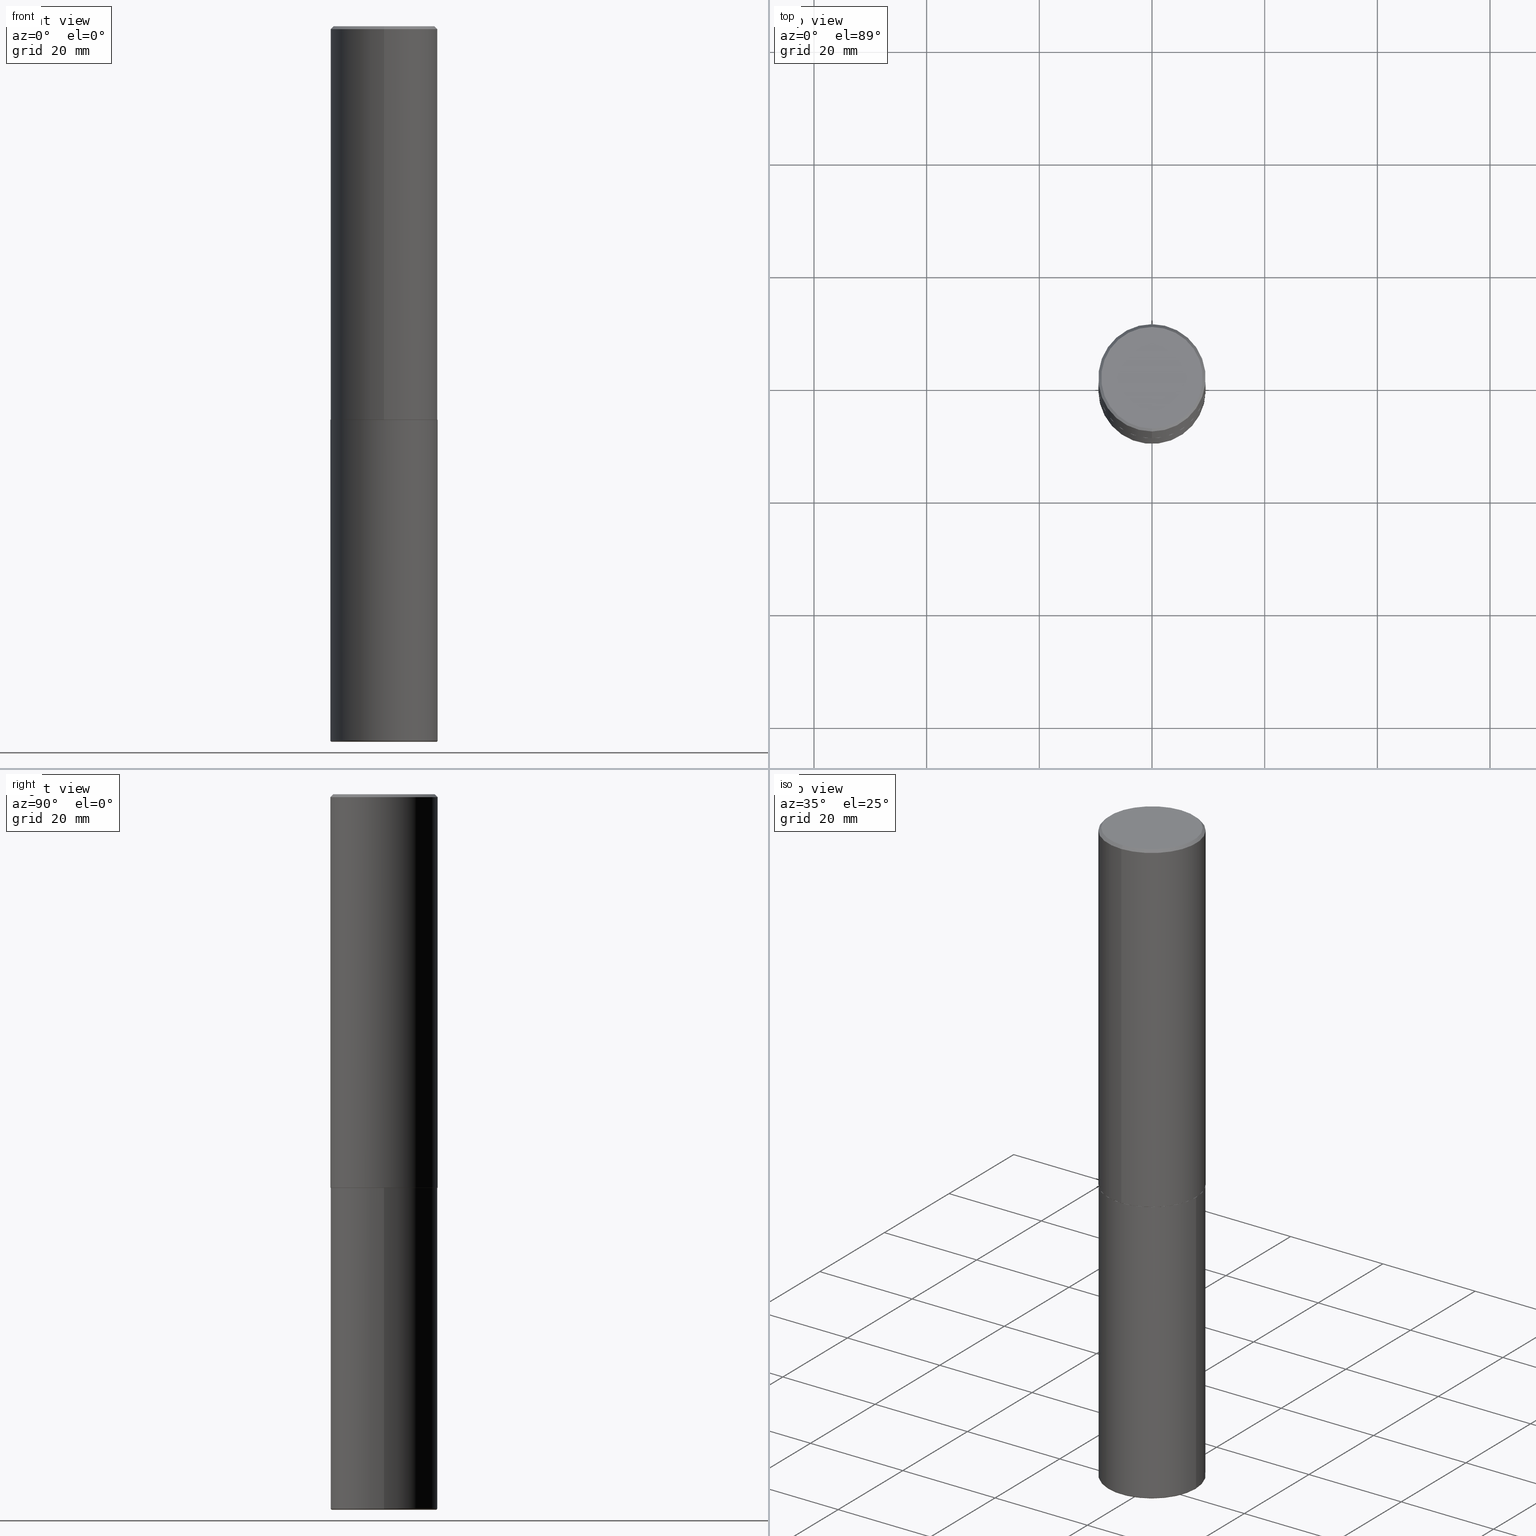
[diagram: canonical four-view strip — front | top / right | iso, engineering-drawing reading convention]
A machine part, canonical four-view strip (front | top / right | iso — engineering-drawing reading convention). The complete STEP part file that produces these views, byte-faithful:
ISO-10303-21;
HEADER;
FILE_DESCRIPTION (( 'STEP AP203' ),
    '1' );
FILE_NAME ('37638.STEP',
    '2024-03-02T06:32:26',
    ( '' ),
    ( '' ),
    'SwSTEP 2.0',
    'SolidWorks 2023',
    '' );
FILE_SCHEMA (( 'CONFIG_CONTROL_DESIGN' ));
ENDSEC;

DATA;
#1 = PLANE ( 'NONE',  #371 ) ;
#2 = DIRECTION ( 'NONE',  ( -2.445468806185136597E-29, 3.491481338843145583E-15, 1.000000000000000000 ) ) ;
#3 = ORIENTED_EDGE ( 'NONE', *, *, #283, .T. ) ;
#4 = EDGE_CURVE ( 'NONE', #247, #98, #169, .T. ) ;
#5 = AXIS2_PLACEMENT_3D ( 'NONE', #351, #161, #191 ) ;
#6 = AXIS2_PLACEMENT_3D ( 'NONE', #58, #65, #409 ) ;
#7 = FACE_OUTER_BOUND ( 'NONE', #287, .T. ) ;
#8 = APPROVAL ( #349, 'UNSPECIFIED' ) ;
#9 = DIRECTION ( 'NONE',  ( -6.982962677686266711E-15, -1.000000000000000000, 2.921762560068730595E-15 ) ) ;
#10 = VERTEX_POINT ( 'NONE', #168 ) ;
#11 = DIRECTION ( 'NONE',  ( -2.446040391741596606E-29, 3.490662795793665557E-15, 1.000000000000000000 ) ) ;
#12 = AXIS2_PLACEMENT_3D ( 'NONE', #40, #201, #209 ) ;
#13 = VECTOR ( 'NONE', #262, 39.37007874015748143 ) ;
#14 = EDGE_CURVE ( 'NONE', #247, #341, #202, .T. ) ;
#15 = APPLICATION_PROTOCOL_DEFINITION ( 'international standard', 'config_control_design', 1994, #340 ) ;
#16 = CARTESIAN_POINT ( 'NONE',  ( 2.660982545421643429E-15, 0.3739999999999903957, -2.750000000000000888 ) ) ;
#17 = CARTESIAN_POINT ( 'NONE',  ( 1.220288934286383144E-28, -1.742249188082729666E-14, -4.990000000000000213 ) ) ;
#18 = CARTESIAN_POINT ( 'NONE',  ( 0.3650000000000000466, -2.000618807157122291E-14, -5.000000000000000888 ) ) ;
#19 = PERSON_AND_ORGANIZATION_ROLE ( 'classification_officer' ) ;
#20 = CARTESIAN_POINT ( 'NONE',  ( 1.220288934286383144E-28, -1.742249188082729666E-14, -4.990000000000000213 ) ) ;
#21 = EDGE_CURVE ( 'NONE', #400, #66, #189, .T. ) ;
#22 = CONICAL_SURFACE ( 'NONE', #129, 0.3739999999999999991, 0.7853981633977213939 ) ;
#23 = CC_DESIGN_PERSON_AND_ORGANIZATION_ASSIGNMENT ( #51, #238, ( #49 ) ) ;
#24 = PRODUCT_DEFINITION_SHAPE ( 'NONE', 'NONE',  #49 ) ;
#25 = EDGE_LOOP ( 'NONE', ( #71, #3, #204, #89 ) ) ;
#26 = DATE_AND_TIME ( #270, #190 ) ;
#27 = CARTESIAN_POINT ( 'NONE',  ( 6.725039217009124520E-29, -9.601573681818649859E-15, -2.750000000000000000 ) ) ;
#28 = ADVANCED_FACE ( 'NONE', ( #291 ), #22, .T. ) ;
#29 = AXIS2_PLACEMENT_3D ( 'NONE', #127, #377, #414 ) ;
#30 = ORIENTED_EDGE ( 'NONE', *, *, #96, .F. ) ;
#31 = DIRECTION ( 'NONE',  ( 1.000000000000000000, -6.982962677686261189E-15, 0.000000000000000000 ) ) ;
#32 = PERSON_AND_ORGANIZATION_ROLE ( 'design_owner' ) ;
#33 = AXIS2_PLACEMENT_3D ( 'NONE', #254, #412, #243 ) ;
#34 = ORIENTED_EDGE ( 'NONE', *, *, #80, .F. ) ;
#35 = CC_DESIGN_PERSON_AND_ORGANIZATION_ASSIGNMENT ( #126, #32, ( #236 ) ) ;
#36 = CARTESIAN_POINT ( 'NONE',  ( 0.000000000000000000, 0.000000000000000000, 0.000000000000000000 ) ) ;
#37 = LINE ( 'NONE', #113, #216 ) ;
#38 = AXIS2_PLACEMENT_3D ( 'NONE', #76, #2, #251 ) ;
#39 = AXIS2_PLACEMENT_3D ( 'NONE', #214, #130, #301 ) ;
#40 = CARTESIAN_POINT ( 'NONE',  ( 1.220288934286383144E-28, -1.742249188082729666E-14, -4.990000000000000213 ) ) ;
#41 = DIRECTION ( 'NONE',  ( 2.446040391741596606E-29, -3.490662795793665557E-15, -1.000000000000000000 ) ) ;
#42 =( CONVERSION_BASED_UNIT ( 'INCH', #330 ) LENGTH_UNIT ( ) NAMED_UNIT ( #147 ) );
#43 = DIRECTION ( 'NONE',  ( -6.982962677686265922E-15, -1.000000000000000000, 3.494488891895536035E-15 ) ) ;
#44 = CARTESIAN_POINT ( 'NONE',  ( -0.3650000000000000466, -1.481094116520914498E-14, -5.000000000000000888 ) ) ;
#45 = ORIENTED_EDGE ( 'NONE', *, *, #403, .F. ) ;
#46 = CIRCLE ( 'NONE', #33, 0.3739999999999999991 ) ;
#47 = TOROIDAL_SURFACE ( 'NONE', #12, 0.3650000000000000466, 0.01000000000000061083 ) ;
#48 = ORIENTED_EDGE ( 'NONE', *, *, #288, .T. ) ;
#49 = PRODUCT_DEFINITION ( 'UNKNOWN', '', #303, #183 ) ;
#50 = FACE_OUTER_BOUND ( 'NONE', #121, .T. ) ;
#51 = PERSON_AND_ORGANIZATION ( #220, #86 ) ;
#52 = ORIENTED_EDGE ( 'NONE', *, *, #171, .T. ) ;
#53 = PERSON_AND_ORGANIZATION ( #220, #86 ) ;
#54 = APPROVAL_ROLE ( '' ) ;
#55 = VERTEX_POINT ( 'NONE', #359 ) ;
#56 = ORIENTED_EDGE ( 'NONE', *, *, #245, .T. ) ;
#57 = CALENDAR_DATE ( 2024, 2, 3 ) ;
#58 = CARTESIAN_POINT ( 'NONE',  ( 1.222734403092568523E-28, -1.745740669421573304E-14, -5.000000000000000888 ) ) ;
#59 = EDGE_LOOP ( 'NONE', ( #375, #218, #272, #97 ) ) ;
#60 = EDGE_CURVE ( 'NONE', #62, #273, #406, .T. ) ;
#61 = DIRECTION ( 'NONE',  ( -2.446040391741596606E-29, 3.490662795793665557E-15, 1.000000000000000000 ) ) ;
#62 = VERTEX_POINT ( 'NONE', #16 ) ;
#63 = CIRCLE ( 'NONE', #326, 0.3750000000000000555 ) ;
#64 = LOCAL_TIME ( 1, 32, 26.00000000000000000, #179 ) ;
#65 = DIRECTION ( 'NONE',  ( -2.445468806185136597E-29, 3.491481338843145583E-15, 1.000000000000000000 ) ) ;
#66 = VERTEX_POINT ( 'NONE', #143 ) ;
#67 = EDGE_CURVE ( 'NONE', #98, #55, #263, .T. ) ;
#68 = EDGE_LOOP ( 'NONE', ( #416, #141 ) ) ;
#69 = ORIENTED_EDGE ( 'NONE', *, *, #74, .T. ) ;
#70 = AXIS2_PLACEMENT_3D ( 'NONE', #241, #398, #368 ) ;
#71 = ORIENTED_EDGE ( 'NONE', *, *, #100, .T. ) ;
#72 = CYLINDRICAL_SURFACE ( 'NONE', #177, 0.3750000000000002220 ) ;
#73 = DIRECTION ( 'NONE',  ( -1.000000000000000000, 6.982962677686265922E-15, -4.876176775795935793E-29 ) ) ;
#74 = EDGE_CURVE ( 'NONE', #400, #394, #315, .T. ) ;
#75 = DIRECTION ( 'NONE',  ( 1.000000000000000000, -6.982962677686271444E-15, 4.883557194083115143E-29 ) ) ;
#76 = CARTESIAN_POINT ( 'NONE',  ( 1.220288934286383144E-28, -1.742249188082729666E-14, -4.990000000000000213 ) ) ;
#77 = CARTESIAN_POINT ( 'NONE',  ( 6.726611077289389265E-29, -9.599322688432580971E-15, -2.750000000000000000 ) ) ;
#78 = DIRECTION ( 'NONE',  ( -2.445468806185136597E-29, 3.491481338843145583E-15, 1.000000000000000000 ) ) ;
#79 = CARTESIAN_POINT ( 'NONE',  ( -2.572686749164323547E-15, -0.3750000000000001110, -0.01999999999999877570 ) ) ;
#80 = EDGE_CURVE ( 'NONE', #273, #174, #260, .T. ) ;
#81 = CYLINDRICAL_SURFACE ( 'NONE', #194, 0.3750000000000002220 ) ;
#82 = DIRECTION ( 'NONE',  ( -2.446040391741596606E-29, 3.490662795793665557E-15, 1.000000000000000000 ) ) ;
#83 = ORIENTED_EDGE ( 'NONE', *, *, #353, .T. ) ;
#84 = ORIENTED_EDGE ( 'NONE', *, *, #396, .F. ) ;
#85 = VECTOR ( 'NONE', #205, 39.37007874015748143 ) ;
#86 = ORGANIZATION ( 'UNSPECIFIED', 'UNSPECIFIED', '' ) ;
#87 = DIRECTION ( 'NONE',  ( -6.982962677686265922E-15, -1.000000000000000000, 3.494488891895536035E-15 ) ) ;
#88 = ADVANCED_FACE ( 'NONE', ( #50 ), #302, .T. ) ;
#89 = ORIENTED_EDGE ( 'NONE', *, *, #192, .F. ) ;
#90 = APPROVAL_STATUS ( 'not_yet_approved' ) ;
#91 = PRODUCT_RELATED_PRODUCT_CATEGORY ( 'detail', '', ( #236 ) ) ;
#92 = DATE_AND_TIME ( #328, #284 ) ;
#93 = APPLICATION_PROTOCOL_DEFINITION ( 'international standard', 'config_control_design', 1994, #389 ) ;
#94 = CC_DESIGN_APPROVAL ( #387, ( #49 ) ) ;
#95 = APPROVAL_DATE_TIME ( #240, #103 ) ;
#96 = EDGE_CURVE ( 'NONE', #273, #62, #46, .T. ) ;
#97 = ORIENTED_EDGE ( 'NONE', *, *, #245, .F. ) ;
#98 = VERTEX_POINT ( 'NONE', #285 ) ;
#99 = FACE_OUTER_BOUND ( 'NONE', #339, .T. ) ;
#100 = EDGE_CURVE ( 'NONE', #174, #116, #159, .T. ) ;
#101 = AXIS2_PLACEMENT_3D ( 'NONE', #308, #158, #281 ) ;
#102 = CIRCLE ( 'NONE', #234, 0.3750000000000000555 ) ;
#103 = APPROVAL ( #90, 'UNSPECIFIED' ) ;
#104 = ORIENTED_EDGE ( 'NONE', *, *, #215, .T. ) ;
#105 = AXIS2_PLACEMENT_3D ( 'NONE', #313, #78, #133 ) ;
#106 = CC_DESIGN_APPROVAL ( #103, ( #303 ) ) ;
#107 = ADVANCED_FACE ( 'NONE', ( #137 ), #223, .T. ) ;
#108 = CARTESIAN_POINT ( 'NONE',  ( 6.726611077289389265E-29, -9.599322688432580971E-15, -2.750000000000000000 ) ) ;
#109 = FACE_OUTER_BOUND ( 'NONE', #367, .T. ) ;
#110 = CARTESIAN_POINT ( 'NONE',  ( 2.664535259100376880E-15, 0.3750000000000002220, -1.308998548422625521E-15 ) ) ;
#111 = ADVANCED_FACE ( 'NONE', ( #7 ), #413, .T. ) ;
#112 = AXIS2_PLACEMENT_3D ( 'NONE', #249, #350, #73 ) ;
#113 = CARTESIAN_POINT ( 'NONE',  ( 0.3750000000000000555, -2.618611004132350016E-15, 1.828566290923476203E-29 ) ) ;
#114 = CARTESIAN_POINT ( 'NONE',  ( -2.611628041454596160E-15, -0.3740000000000096581, -2.749999999999998668 ) ) ;
#115 = LINE ( 'NONE', #402, #13 ) ;
#116 = VERTEX_POINT ( 'NONE', #290 ) ;
#117 = DATE_TIME_ROLE ( 'creation_date' ) ;
#118 = VECTOR ( 'NONE', #390, 39.37007874015748143 ) ;
#119 = CC_DESIGN_PERSON_AND_ORGANIZATION_ASSIGNMENT ( #321, #19, ( #373 ) ) ;
#120 = AXIS2_PLACEMENT_3D ( 'NONE', #319, #323, #361 ) ;
#121 = EDGE_LOOP ( 'NONE', ( #384, #69, #56, #128 ) ) ;
#122 = ORIENTED_EDGE ( 'NONE', *, *, #67, .F. ) ;
#123 = MECHANICAL_CONTEXT ( 'NONE', #340, 'mechanical' ) ;
#124 = ORIENTED_EDGE ( 'NONE', *, *, #80, .T. ) ;
#125 = APPROVAL_STATUS ( 'not_yet_approved' ) ;
#126 = PERSON_AND_ORGANIZATION ( #220, #86 ) ;
#127 = CARTESIAN_POINT ( 'NONE',  ( 4.892080783483214581E-31, -6.981325591587361238E-17, -0.02000000000000008715 ) ) ;
#128 = ORIENTED_EDGE ( 'NONE', *, *, #215, .F. ) ;
#129 = AXIS2_PLACEMENT_3D ( 'NONE', #138, #331, #9 ) ;
#130 = DIRECTION ( 'NONE',  ( 2.438088387897960049E-29, -3.491481338843145188E-15, -1.000000000000000000 ) ) ;
#131 = PLANE ( 'NONE',  #112 ) ;
#132 = AXIS2_PLACEMENT_3D ( 'NONE', #20, #278, #75 ) ;
#133 = DIRECTION ( 'NONE',  ( 1.000000000000000000, -6.982962677686265922E-15, 4.876176775795935793E-29 ) ) ;
#134 = APPROVAL_PERSON_ORGANIZATION ( #381, #8, #261 ) ;
#135 = EDGE_CURVE ( 'NONE', #116, #174, #139, .T. ) ;
#136 = DIRECTION ( 'NONE',  ( 6.982962677686265922E-15, 1.000000000000000000, -3.494488891895536035E-15 ) ) ;
#137 = FACE_OUTER_BOUND ( 'NONE', #296, .T. ) ;
#138 = CARTESIAN_POINT ( 'NONE',  ( 6.726611077289389265E-29, -9.599322688432580971E-15, -2.750000000000000000 ) ) ;
#139 = CIRCLE ( 'NONE', #401, 0.3750000000000003886 ) ;
#140 = APPROVAL_PERSON_ORGANIZATION ( #237, #103, #54 ) ;
#141 = ORIENTED_EDGE ( 'NONE', *, *, #360, .T. ) ;
#142 = MANIFOLD_SOLID_BREP ( 'Body-Move/Copy2[1]', #297 ) ;
#143 = CARTESIAN_POINT ( 'NONE',  ( -0.3750000000000003886, -1.475795662172691781E-14, -4.990000000000000213 ) ) ;
#144 = EDGE_CURVE ( 'NONE', #98, #247, #149, .T. ) ;
#145 = PERSON_AND_ORGANIZATION ( #220, #86 ) ;
#146 = DIRECTION ( 'NONE',  ( -2.445468806185136597E-29, 3.491481338843145583E-15, 1.000000000000000000 ) ) ;
#147 = DIMENSIONAL_EXPONENTS ( 1.000000000000000000, 0.000000000000000000, 0.000000000000000000, 0.000000000000000000, 0.000000000000000000, 0.000000000000000000, 0.000000000000000000 ) ;
#148 = CC_DESIGN_DATE_AND_TIME_ASSIGNMENT ( #366, #199, ( #373 ) ) ;
#149 = CIRCLE ( 'NONE', #257, 0.3549999999999999822 ) ;
#150 = CC_DESIGN_SECURITY_CLASSIFICATION ( #373, ( #303 ) ) ;
#151 = ORIENTED_EDGE ( 'NONE', *, *, #396, .T. ) ;
#152 = CYLINDRICAL_SURFACE ( 'NONE', #70, 0.3750000000000000555 ) ;
#153 = AXIS2_PLACEMENT_3D ( 'NONE', #295, #407, #87 ) ;
#154 = EDGE_CURVE ( 'NONE', #341, #55, #63, .T. ) ;
#155 = EDGE_LOOP ( 'NONE', ( #164, #184, #352, #312 ) ) ;
#156 = DIRECTION ( 'NONE',  ( -6.982962677686266711E-15, -1.000000000000000000, 2.921762560068730595E-15 ) ) ;
#157 = ORIENTED_EDGE ( 'NONE', *, *, #154, .T. ) ;
#158 = DIRECTION ( 'NONE',  ( -6.982962677686266711E-15, -1.000000000000000000, 3.491481338843145583E-15 ) ) ;
#159 = CIRCLE ( 'NONE', #5, 0.3750000000000003886 ) ;
#160 = ORIENTED_EDGE ( 'NONE', *, *, #144, .T. ) ;
#161 = DIRECTION ( 'NONE',  ( -2.446040391741596606E-29, 3.490662795793665557E-15, 1.000000000000000000 ) ) ;
#162 = LINE ( 'NONE', #286, #309 ) ;
#163 = DIRECTION ( 'NONE',  ( -2.446040391741596606E-29, 3.490662795793665557E-15, 1.000000000000000000 ) ) ;
#164 = ORIENTED_EDGE ( 'NONE', *, *, #283, .F. ) ;
#165 = CC_DESIGN_DATE_AND_TIME_ASSIGNMENT ( #175, #117, ( #49 ) ) ;
#166 =( LENGTH_UNIT ( ) NAMED_UNIT ( * ) SI_UNIT ( $, .METRE. ) );
#167 = DIRECTION ( 'NONE',  ( -6.982962677686266711E-15, -1.000000000000000000, 3.490662795793665951E-15 ) ) ;
#168 = CARTESIAN_POINT ( 'NONE',  ( -0.3750000000000000555, -1.084749752222259835E-14, -2.750000000000000000 ) ) ;
#169 = CIRCLE ( 'NONE', #244, 0.3549999999999999822 ) ;
#170 = CIRCLE ( 'NONE', #178, 0.3750000000000000555 ) ;
#171 = EDGE_CURVE ( 'NONE', #66, #10, #388, .T. ) ;
#172 = ORIENTED_EDGE ( 'NONE', *, *, #14, .T. ) ;
#173 = DIRECTION ( 'NONE',  ( -2.446040391741596606E-29, 3.490662795793665557E-15, 1.000000000000000000 ) ) ;
#174 = VERTEX_POINT ( 'NONE', #197 ) ;
#175 = DATE_AND_TIME ( #372, #310 ) ;
#176 = EDGE_CURVE ( 'NONE', #418, #185, #37, .T. ) ;
#177 = AXIS2_PLACEMENT_3D ( 'NONE', #252, #224, #354 ) ;
#178 = AXIS2_PLACEMENT_3D ( 'NONE', #17, #182, #31 ) ;
#179 = COORDINATED_UNIVERSAL_TIME_OFFSET ( 5, 0, .BEHIND. ) ;
#180 = EDGE_LOOP ( 'NONE', ( #181, #248 ) ) ;
#181 = ORIENTED_EDGE ( 'NONE', *, *, #305, .F. ) ;
#182 = DIRECTION ( 'NONE',  ( -2.445468806185136597E-29, 3.491481338843145583E-15, 1.000000000000000000 ) ) ;
#183 = DESIGN_CONTEXT ( 'detailed design', #389, 'design' ) ;
#184 = ORIENTED_EDGE ( 'NONE', *, *, #135, .T. ) ;
#185 = VERTEX_POINT ( 'NONE', #320 ) ;
#186 = CONICAL_SURFACE ( 'NONE', #207, 0.3739999999999999991, 0.7853981633977213939 ) ;
#187 = FACE_OUTER_BOUND ( 'NONE', #180, .T. ) ;
#188 = PLANE ( 'NONE',  #385 ) ;
#189 = CIRCLE ( 'NONE', #292, 0.01000000000000057614 ) ;
#190 = LOCAL_TIME ( 1, 32, 26.00000000000000000, #376 ) ;
#191 = DIRECTION ( 'NONE',  ( -6.982962677686265922E-15, -1.000000000000000000, 2.913971193241877611E-15 ) ) ;
#192 = EDGE_CURVE ( 'NONE', #174, #341, #162, .T. ) ;
#193 = CARTESIAN_POINT ( 'NONE',  ( 4.892080783483214581E-31, -6.981325591587361238E-17, -0.02000000000000008715 ) ) ;
#194 = AXIS2_PLACEMENT_3D ( 'NONE', #36, #195, #167 ) ;
#195 = DIRECTION ( 'NONE',  ( -2.446040391741596606E-29, 3.490662795793665557E-15, 1.000000000000000000 ) ) ;
#196 = CARTESIAN_POINT ( 'NONE',  ( 2.618611004132350411E-15, 0.3749999999999999445, -0.02000000000000139513 ) ) ;
#197 = CARTESIAN_POINT ( 'NONE',  ( -2.618611004132284935E-15, -0.3750000000000099920, -2.748999999999999222 ) ) ;
#198 = DIRECTION ( 'NONE',  ( -2.445468806185136597E-29, 3.491481338843145583E-15, 1.000000000000000000 ) ) ;
#199 = DATE_TIME_ROLE ( 'classification_date' ) ;
#200 = UNCERTAINTY_MEASURE_WITH_UNIT (LENGTH_MEASURE( 1.000000000000000082E-05 ), #42, 'distance_accuracy_value', 'NONE');
#201 = DIRECTION ( 'NONE',  ( -2.445468806185136597E-29, 3.491481338843145583E-15, 1.000000000000000000 ) ) ;
#202 = LINE ( 'NONE', #79, #85 ) ;
#203 = ADVANCED_FACE ( 'NONE', ( #386 ), #81, .T. ) ;
#204 = ORIENTED_EDGE ( 'NONE', *, *, #154, .F. ) ;
#205 = DIRECTION ( 'NONE',  ( -4.851104656540954809E-15, -0.7071067811865486830, -0.7071067811865463515 ) ) ;
#206 = VECTOR ( 'NONE', #61, 39.37007874015748143 ) ;
#207 = AXIS2_PLACEMENT_3D ( 'NONE', #235, #338, #156 ) ;
#208 = CARTESIAN_POINT ( 'NONE',  ( -2.572686749164323547E-15, -0.3750000000000001110, -0.01999999999999877570 ) ) ;
#209 = DIRECTION ( 'NONE',  ( 1.000000000000000000, -6.982962677686271444E-15, 4.883557194083115143E-29 ) ) ;
#210 = DIRECTION ( 'NONE',  ( -4.937700262165896205E-15, -0.7071067811867381980, 0.7071067811863568364 ) ) ;
#211 = EDGE_LOOP ( 'NONE', ( #276, #151, #363, #34 ) ) ;
#212 = ADVANCED_FACE ( 'NONE', ( #348 ), #72, .T. ) ;
#213 =( GEOMETRIC_REPRESENTATION_CONTEXT ( 3 ) GLOBAL_UNCERTAINTY_ASSIGNED_CONTEXT ( ( #200 ) ) GLOBAL_UNIT_ASSIGNED_CONTEXT ( ( #42, #266, #230 ) ) REPRESENTATION_CONTEXT ( 'NONE', 'WORKASPACE' ) );
#214 = CARTESIAN_POINT ( 'NONE',  ( 1.774526178394363037E-29, -3.242643679648566706E-14, -5.000000000000000000 ) ) ;
#215 = EDGE_CURVE ( 'NONE', #66, #418, #225, .T. ) ;
#216 = VECTOR ( 'NONE', #228, 39.37007874015748143 ) ;
#217 = CC_DESIGN_PERSON_AND_ORGANIZATION_ASSIGNMENT ( #246, #379, ( #303 ) ) ;
#218 = ORIENTED_EDGE ( 'NONE', *, *, #21, .T. ) ;
#219 = ORIENTED_EDGE ( 'NONE', *, *, #176, .T. ) ;
#220 = PERSON ( 'UNSPECIFIED', 'UNSPECIFIED', 'UNSPECIFIED', ('UNSPECIFIED'), ('UNSPECIFIED'), ('UNSPECIFIED') ) ;
#221 = VECTOR ( 'NONE', #356, 39.37007874015748143 ) ;
#222 = EDGE_LOOP ( 'NONE', ( #382, #172, #157, #122 ) ) ;
#223 = CYLINDRICAL_SURFACE ( 'NONE', #105, 0.3750000000000000555 ) ;
#224 = DIRECTION ( 'NONE',  ( -2.446040391741596606E-29, 3.490662795793665557E-15, 1.000000000000000000 ) ) ;
#225 = CIRCLE ( 'NONE', #38, 0.3750000000000000555 ) ;
#226 = DIRECTION ( 'NONE',  ( -6.982962677686265922E-15, -1.000000000000000000, 2.913971193241877611E-15 ) ) ;
#227 = DIRECTION ( 'NONE',  ( -1.000000000000000000, 7.105427357601099677E-15, 0.000000000000000000 ) ) ;
#228 = DIRECTION ( 'NONE',  ( -2.445468806185136877E-29, 3.491481338843145188E-15, 1.000000000000000000 ) ) ;
#229 = ADVANCED_FACE ( 'NONE', ( #109 ), #188, .F. ) ;
#230 =( NAMED_UNIT ( * ) SI_UNIT ( $, .STERADIAN. ) SOLID_ANGLE_UNIT ( ) );
#231 = CARTESIAN_POINT ( 'NONE',  ( -0.3650000000000000466, -1.482901089530292947E-14, -4.990000000000000213 ) ) ;
#232 = CC_DESIGN_PERSON_AND_ORGANIZATION_ASSIGNMENT ( #145, #364, ( #303 ) ) ;
#233 = CARTESIAN_POINT ( 'NONE',  ( 1.222734403092568523E-28, -1.745740669421573304E-14, -5.000000000000000888 ) ) ;
#234 = AXIS2_PLACEMENT_3D ( 'NONE', #27, #146, #265 ) ;
#235 = CARTESIAN_POINT ( 'NONE',  ( 6.726611077289389265E-29, -9.599322688432580971E-15, -2.750000000000000000 ) ) ;
#236 = PRODUCT ( '37638', '37638', '', ( #123 ) ) ;
#237 = PERSON_AND_ORGANIZATION ( #220, #86 ) ;
#238 = PERSON_AND_ORGANIZATION_ROLE ( 'creator' ) ;
#239 = EDGE_LOOP ( 'NONE', ( #84, #383, #124, #242 ) ) ;
#240 = DATE_AND_TIME ( #332, #64 ) ;
#241 = CARTESIAN_POINT ( 'NONE',  ( 0.000000000000000000, 0.000000000000000000, 0.000000000000000000 ) ) ;
#242 = ORIENTED_EDGE ( 'NONE', *, *, #135, .F. ) ;
#243 = DIRECTION ( 'NONE',  ( -6.982962677686266711E-15, -1.000000000000000000, 2.921762560068730595E-15 ) ) ;
#244 = AXIS2_PLACEMENT_3D ( 'NONE', #397, #82, #322 ) ;
#245 = EDGE_CURVE ( 'NONE', #394, #418, #268, .T. ) ;
#246 = PERSON_AND_ORGANIZATION ( #220, #86 ) ;
#247 = VERTEX_POINT ( 'NONE', #415 ) ;
#248 = ORIENTED_EDGE ( 'NONE', *, *, #74, .F. ) ;
#249 = CARTESIAN_POINT ( 'NONE',  ( 6.725039217009124520E-29, -9.601573681818649859E-15, -2.750000000000000000 ) ) ;
#250 = CONICAL_SURFACE ( 'NONE', #29, 0.3750000000000000555, 0.7853981633974465026 ) ;
#251 = DIRECTION ( 'NONE',  ( 1.000000000000000000, -6.982962677686261189E-15, 0.000000000000000000 ) ) ;
#252 = CARTESIAN_POINT ( 'NONE',  ( 0.000000000000000000, 0.000000000000000000, 0.000000000000000000 ) ) ;
#253 = CARTESIAN_POINT ( 'NONE',  ( -1.141397163745304909E-45, 1.628849886601155835E-31, 4.666305460853910467E-17 ) ) ;
#254 = CARTESIAN_POINT ( 'NONE',  ( 6.726611077289389265E-29, -9.599322688432580971E-15, -2.750000000000000000 ) ) ;
#255 = ADVANCED_FACE ( 'NONE', ( #99 ), #1, .F. ) ;
#256 = CARTESIAN_POINT ( 'NONE',  ( 0.3750000000000003886, -2.004110288495964667E-14, -4.990000000000000213 ) ) ;
#257 = AXIS2_PLACEMENT_3D ( 'NONE', #253, #163, #393 ) ;
#258 = CARTESIAN_POINT ( 'NONE',  ( 6.724165036897648492E-29, -9.595832025636787455E-15, -2.749000000000000110 ) ) ;
#259 = APPROVAL_PERSON_ORGANIZATION ( #53, #387, #298 ) ;
#260 = LINE ( 'NONE', #114, #380 ) ;
#261 = APPROVAL_ROLE ( '' ) ;
#262 = DIRECTION ( 'NONE',  ( 5.024295867789434219E-15, 0.7071067811867430830, 0.7071067811863519514 ) ) ;
#263 = LINE ( 'NONE', #196, #221 ) ;
#264 = ADVANCED_FACE ( 'NONE', ( #280 ), #131, .F. ) ;
#265 = DIRECTION ( 'NONE',  ( 1.000000000000000000, -6.982962677686266711E-15, 0.000000000000000000 ) ) ;
#266 =( NAMED_UNIT ( * ) PLANE_ANGLE_UNIT ( ) SI_UNIT ( $, .RADIAN. ) );
#267 = DIRECTION ( 'NONE',  ( 1.000000000000000000, -6.982962677686270655E-15, 0.000000000000000000 ) ) ;
#268 = CIRCLE ( 'NONE', #101, 0.01000000000000057614 ) ;
#269 = CIRCLE ( 'NONE', #6, 0.3650000000000000466 ) ;
#270 = CALENDAR_DATE ( 2024, 2, 3 ) ;
#271 = DIRECTION ( 'NONE',  ( 1.000000000000000000, 0.000000000000000000, 0.000000000000000000 ) ) ;
#272 = ORIENTED_EDGE ( 'NONE', *, *, #353, .F. ) ;
#273 = VERTEX_POINT ( 'NONE', #304 ) ;
#274 = DIRECTION ( 'NONE',  ( 6.982962677686265922E-15, 1.000000000000000000, -3.490662795793665557E-15 ) ) ;
#275 = MANIFOLD_SOLID_BREP ( 'Body-Move/Copy2[2]', #346 ) ;
#276 = ORIENTED_EDGE ( 'NONE', *, *, #96, .T. ) ;
#277 = FACE_OUTER_BOUND ( 'NONE', #222, .T. ) ;
#278 = DIRECTION ( 'NONE',  ( -2.445468806185136597E-29, 3.491481338843145583E-15, 1.000000000000000000 ) ) ;
#279 = COORDINATED_UNIVERSAL_TIME_OFFSET ( 5, 0, .BEHIND. ) ;
#280 = FACE_OUTER_BOUND ( 'NONE', #68, .T. ) ;
#281 = DIRECTION ( 'NONE',  ( 1.000000000000000000, -6.982962677686124716E-15, 0.000000000000000000 ) ) ;
#282 = DIRECTION ( 'NONE',  ( -2.446040391741596606E-29, 3.490662795793665557E-15, 1.000000000000000000 ) ) ;
#283 = EDGE_CURVE ( 'NONE', #116, #55, #411, .T. ) ;
#284 = LOCAL_TIME ( 1, 32, 26.00000000000000000, #279 ) ;
#285 = CARTESIAN_POINT ( 'NONE',  ( 2.548781377355487113E-15, 0.3549999999999999822, -1.192522237898212341E-15 ) ) ;
#286 = CARTESIAN_POINT ( 'NONE',  ( -2.618611004132351594E-15, -0.3750000000000002220, 1.308998548422625521E-15 ) ) ;
#287 = EDGE_LOOP ( 'NONE', ( #299, #374, #337, #48 ) ) ;
#288 = EDGE_CURVE ( 'NONE', #55, #341, #335, .T. ) ;
#289 = SHAPE_DEFINITION_REPRESENTATION ( #24, #395 ) ;
#290 = CARTESIAN_POINT ( 'NONE',  ( 2.664535259100411196E-15, 0.3749999999999907296, -2.749000000000000998 ) ) ;
#291 = FACE_OUTER_BOUND ( 'NONE', #211, .T. ) ;
#292 = AXIS2_PLACEMENT_3D ( 'NONE', #231, #325, #227 ) ;
#293 = FACE_OUTER_BOUND ( 'NONE', #59, .T. ) ;
#294 = DIRECTION ( 'NONE',  ( -6.982962677686266711E-15, -1.000000000000000000, 2.921762560068730595E-15 ) ) ;
#295 = CARTESIAN_POINT ( 'NONE',  ( 4.892080783483214581E-31, -6.981325591587361238E-17, -0.02000000000000008715 ) ) ;
#296 = EDGE_LOOP ( 'NONE', ( #83, #52, #45, #408 ) ) ;
#297 = CLOSED_SHELL ( 'NONE', ( #107, #410, #264, #378, #88, #336 ) ) ;
#298 = APPROVAL_ROLE ( '' ) ;
#299 = ORIENTED_EDGE ( 'NONE', *, *, #14, .F. ) ;
#300 = ADVANCED_FACE ( 'NONE', ( #307 ), #186, .T. ) ;
#301 = DIRECTION ( 'NONE',  ( -1.000000000000000000, 6.982962677686265922E-15, -4.876176775795935793E-29 ) ) ;
#302 = TOROIDAL_SURFACE ( 'NONE', #132, 0.3650000000000000466, 0.01000000000000061083 ) ;
#303 = PRODUCT_DEFINITION_FORMATION_WITH_SPECIFIED_SOURCE ( 'ANY', '', #236, .NOT_KNOWN. ) ;
#304 = CARTESIAN_POINT ( 'NONE',  ( -2.611628041454596160E-15, -0.3740000000000096581, -2.749999999999998668 ) ) ;
#305 = EDGE_CURVE ( 'NONE', #394, #400, #269, .T. ) ;
#306 = PLANE ( 'NONE',  #39 ) ;
#307 = FACE_OUTER_BOUND ( 'NONE', #239, .T. ) ;
#308 = CARTESIAN_POINT ( 'NONE',  ( 0.3650000000000000466, -1.997127325818278338E-14, -4.990000000000000213 ) ) ;
#309 = VECTOR ( 'NONE', #358, 39.37007874015748143 ) ;
#310 = LOCAL_TIME ( 1, 32, 26.00000000000000000, #405 ) ;
#311 = DIRECTION ( 'NONE',  ( -6.982962677686265922E-15, -1.000000000000000000, 3.490662795793665557E-15 ) ) ;
#312 = ORIENTED_EDGE ( 'NONE', *, *, #288, .F. ) ;
#313 = CARTESIAN_POINT ( 'NONE',  ( 0.000000000000000000, 0.000000000000000000, 0.000000000000000000 ) ) ;
#314 = CARTESIAN_POINT ( 'NONE',  ( -0.3750000000000000555, 2.664535259100376091E-15, -1.844600658845589598E-29 ) ) ;
#315 = CIRCLE ( 'NONE', #391, 0.3650000000000000466 ) ;
#316 = CC_DESIGN_APPROVAL ( #8, ( #373 ) ) ;
#317 = CARTESIAN_POINT ( 'NONE',  ( 4.892080783483214581E-31, -6.981325591587361238E-17, -0.02000000000000008715 ) ) ;
#318 = EDGE_LOOP ( 'NONE', ( #334, #104, #219, #357 ) ) ;
#319 = CARTESIAN_POINT ( 'NONE',  ( 6.725039217009124520E-29, -9.601573681818649859E-15, -2.750000000000000000 ) ) ;
#320 = CARTESIAN_POINT ( 'NONE',  ( 0.3750000000000000555, -1.222018468595100145E-14, -2.750000000000000000 ) ) ;
#321 = PERSON_AND_ORGANIZATION ( #220, #86 ) ;
#322 = DIRECTION ( 'NONE',  ( -6.982962677686265922E-15, -1.000000000000000000, 3.490662795793665557E-15 ) ) ;
#323 = DIRECTION ( 'NONE',  ( -2.445468806185136597E-29, 3.491481338843145583E-15, 1.000000000000000000 ) ) ;
#324 = SECURITY_CLASSIFICATION_LEVEL ( 'unclassified' ) ;
#325 = DIRECTION ( 'NONE',  ( 7.105427357601001859E-15, 1.000000000000000000, -3.491481338843145583E-15 ) ) ;
#326 = AXIS2_PLACEMENT_3D ( 'NONE', #193, #282, #43 ) ;
#327 = LOCAL_TIME ( 1, 32, 26.00000000000000000, #362 ) ;
#328 = CALENDAR_DATE ( 2024, 2, 3 ) ;
#329 = ADVANCED_FACE ( 'NONE', ( #277 ), #250, .T. ) ;
#330 = LENGTH_MEASURE_WITH_UNIT ( LENGTH_MEASURE( 0.02539999999999999897 ), #166 );
#331 = DIRECTION ( 'NONE',  ( -2.446040391741596606E-29, 3.490662795793665557E-15, 1.000000000000000000 ) ) ;
#332 = CALENDAR_DATE ( 2024, 2, 3 ) ;
#333 = APPROVAL_DATE_TIME ( #26, #387 ) ;
#334 = ORIENTED_EDGE ( 'NONE', *, *, #171, .F. ) ;
#335 = CIRCLE ( 'NONE', #153, 0.3750000000000000555 ) ;
#336 = ADVANCED_FACE ( 'NONE', ( #187 ), #306, .T. ) ;
#337 = ORIENTED_EDGE ( 'NONE', *, *, #67, .T. ) ;
#338 = DIRECTION ( 'NONE',  ( -2.446040391741596606E-29, 3.490662795793665557E-15, 1.000000000000000000 ) ) ;
#339 = EDGE_LOOP ( 'NONE', ( #30, #345 ) ) ;
#340 = APPLICATION_CONTEXT ( 'configuration controlled 3d designs of mechanical parts and assemblies' ) ;
#341 = VERTEX_POINT ( 'NONE', #208 ) ;
#342 = CIRCLE ( 'NONE', #120, 0.3750000000000000555 ) ;
#343 = DIRECTION ( 'NONE',  ( -2.446040391741596045E-29, 3.490662795793665557E-15, 1.000000000000000000 ) ) ;
#344 = DIRECTION ( 'NONE',  ( 2.446040391741596045E-29, -3.490662795793665557E-15, -1.000000000000000000 ) ) ;
#345 = ORIENTED_EDGE ( 'NONE', *, *, #60, .F. ) ;
#346 = CLOSED_SHELL ( 'NONE', ( #28, #203, #329, #111, #212, #300, #255, #229 ) ) ;
#347 = AXIS2_PLACEMENT_3D ( 'NONE', #392, #404, #271 ) ;
#348 = FACE_OUTER_BOUND ( 'NONE', #155, .T. ) ;
#349 = APPROVAL_STATUS ( 'not_yet_approved' ) ;
#350 = DIRECTION ( 'NONE',  ( 2.438088387897960049E-29, -3.491481338843145188E-15, -1.000000000000000000 ) ) ;
#351 = CARTESIAN_POINT ( 'NONE',  ( 6.724165036897648492E-29, -9.595832025636787455E-15, -2.749000000000000110 ) ) ;
#352 = ORIENTED_EDGE ( 'NONE', *, *, #192, .T. ) ;
#353 = EDGE_CURVE ( 'NONE', #418, #66, #170, .T. ) ;
#354 = DIRECTION ( 'NONE',  ( -6.982962677686266711E-15, -1.000000000000000000, 3.490662795793665951E-15 ) ) ;
#355 = AXIS2_PLACEMENT_3D ( 'NONE', #317, #41, #136 ) ;
#356 = DIRECTION ( 'NONE',  ( 4.937700262164538576E-15, 0.7071067811865437980, -0.7071067811865512365 ) ) ;
#357 = ORIENTED_EDGE ( 'NONE', *, *, #360, .F. ) ;
#358 = DIRECTION ( 'NONE',  ( -2.446040391741596606E-29, 3.490662795793665557E-15, 1.000000000000000000 ) ) ;
#359 = CARTESIAN_POINT ( 'NONE',  ( 2.618611004132350411E-15, 0.3749999999999999445, -0.02000000000000139513 ) ) ;
#360 = EDGE_CURVE ( 'NONE', #10, #185, #102, .T. ) ;
#361 = DIRECTION ( 'NONE',  ( 1.000000000000000000, -6.982962677686266711E-15, 0.000000000000000000 ) ) ;
#362 = COORDINATED_UNIVERSAL_TIME_OFFSET ( 5, 0, .BEHIND. ) ;
#363 = ORIENTED_EDGE ( 'NONE', *, *, #100, .F. ) ;
#364 = PERSON_AND_ORGANIZATION_ROLE ( 'creator' ) ;
#365 = APPROVAL_DATE_TIME ( #92, #8 ) ;
#366 = DATE_AND_TIME ( #57, #327 ) ;
#367 = EDGE_LOOP ( 'NONE', ( #160, #369 ) ) ;
#368 = DIRECTION ( 'NONE',  ( 1.000000000000000000, -6.982962677686265922E-15, 4.876176775795935793E-29 ) ) ;
#369 = ORIENTED_EDGE ( 'NONE', *, *, #4, .T. ) ;
#370 = AXIS2_PLACEMENT_3D ( 'NONE', #77, #173, #294 ) ;
#371 = AXIS2_PLACEMENT_3D ( 'NONE', #108, #343, #311 ) ;
#372 = CALENDAR_DATE ( 2024, 2, 3 ) ;
#373 = SECURITY_CLASSIFICATION ( '', '', #324 ) ;
#374 = ORIENTED_EDGE ( 'NONE', *, *, #144, .F. ) ;
#375 = ORIENTED_EDGE ( 'NONE', *, *, #305, .T. ) ;
#376 = COORDINATED_UNIVERSAL_TIME_OFFSET ( 5, 0, .BEHIND. ) ;
#377 = DIRECTION ( 'NONE',  ( 2.446040391741596606E-29, -3.490662795793665557E-15, -1.000000000000000000 ) ) ;
#378 = ADVANCED_FACE ( 'NONE', ( #399 ), #152, .T. ) ;
#379 = PERSON_AND_ORGANIZATION_ROLE ( 'design_supplier' ) ;
#380 = VECTOR ( 'NONE', #210, 39.37007874015748143 ) ;
#381 = PERSON_AND_ORGANIZATION ( #220, #86 ) ;
#382 = ORIENTED_EDGE ( 'NONE', *, *, #4, .F. ) ;
#383 = ORIENTED_EDGE ( 'NONE', *, *, #60, .T. ) ;
#384 = ORIENTED_EDGE ( 'NONE', *, *, #21, .F. ) ;
#385 = AXIS2_PLACEMENT_3D ( 'NONE', #417, #344, #274 ) ;
#386 = FACE_OUTER_BOUND ( 'NONE', #25, .T. ) ;
#387 = APPROVAL ( #125, 'UNSPECIFIED' ) ;
#388 = LINE ( 'NONE', #314, #118 ) ;
#389 = APPLICATION_CONTEXT ( 'configuration controlled 3d designs of mechanical parts and assemblies' ) ;
#390 = DIRECTION ( 'NONE',  ( -2.445468806185136877E-29, 3.491481338843145188E-15, 1.000000000000000000 ) ) ;
#391 = AXIS2_PLACEMENT_3D ( 'NONE', #233, #198, #267 ) ;
#392 = CARTESIAN_POINT ( 'NONE',  ( 0.000000000000000000, 0.000000000000000000, 0.000000000000000000 ) ) ;
#393 = DIRECTION ( 'NONE',  ( -6.982962677686265922E-15, -1.000000000000000000, 3.490662795793665557E-15 ) ) ;
#394 = VERTEX_POINT ( 'NONE', #18 ) ;
#395 = ADVANCED_BREP_SHAPE_REPRESENTATION ( '37638', ( #142, #275, #347 ), #213 ) ;
#396 = EDGE_CURVE ( 'NONE', #62, #116, #115, .T. ) ;
#397 = CARTESIAN_POINT ( 'NONE',  ( -1.141397163745304909E-45, 1.628849886601155835E-31, 4.666305460853910467E-17 ) ) ;
#398 = DIRECTION ( 'NONE',  ( -2.445468806185136597E-29, 3.491481338843145583E-15, 1.000000000000000000 ) ) ;
#399 = FACE_OUTER_BOUND ( 'NONE', #318, .T. ) ;
#400 = VERTEX_POINT ( 'NONE', #44 ) ;
#401 = AXIS2_PLACEMENT_3D ( 'NONE', #258, #11, #226 ) ;
#402 = CARTESIAN_POINT ( 'NONE',  ( 2.657429831742841742E-15, 0.3739999999999903957, -2.750000000000000888 ) ) ;
#403 = EDGE_CURVE ( 'NONE', #185, #10, #342, .T. ) ;
#404 = DIRECTION ( 'NONE',  ( 0.000000000000000000, 0.000000000000000000, 1.000000000000000000 ) ) ;
#405 = COORDINATED_UNIVERSAL_TIME_OFFSET ( 5, 0, .BEHIND. ) ;
#406 = CIRCLE ( 'NONE', #370, 0.3739999999999999991 ) ;
#407 = DIRECTION ( 'NONE',  ( -2.446040391741596606E-29, 3.490662795793665557E-15, 1.000000000000000000 ) ) ;
#408 = ORIENTED_EDGE ( 'NONE', *, *, #176, .F. ) ;
#409 = DIRECTION ( 'NONE',  ( 1.000000000000000000, -6.982962677686270655E-15, 0.000000000000000000 ) ) ;
#410 = ADVANCED_FACE ( 'NONE', ( #293 ), #47, .T. ) ;
#411 = LINE ( 'NONE', #110, #206 ) ;
#412 = DIRECTION ( 'NONE',  ( -2.446040391741596606E-29, 3.490662795793665557E-15, 1.000000000000000000 ) ) ;
#413 = CONICAL_SURFACE ( 'NONE', #355, 0.3750000000000000555, 0.7853981633974465026 ) ;
#414 = DIRECTION ( 'NONE',  ( 6.982962677686265922E-15, 1.000000000000000000, -3.494488891895536035E-15 ) ) ;
#415 = CARTESIAN_POINT ( 'NONE',  ( -2.504081769186608216E-15, -0.3549999999999999822, 1.285848347115290366E-15 ) ) ;
#416 = ORIENTED_EDGE ( 'NONE', *, *, #403, .T. ) ;
#417 = CARTESIAN_POINT ( 'NONE',  ( 2.478951750578624209E-15, 0.3549999999999999822, -1.215853765202481601E-15 ) ) ;
#418 = VERTEX_POINT ( 'NONE', #256 ) ;
ENDSEC;
END-ISO-10303-21;
